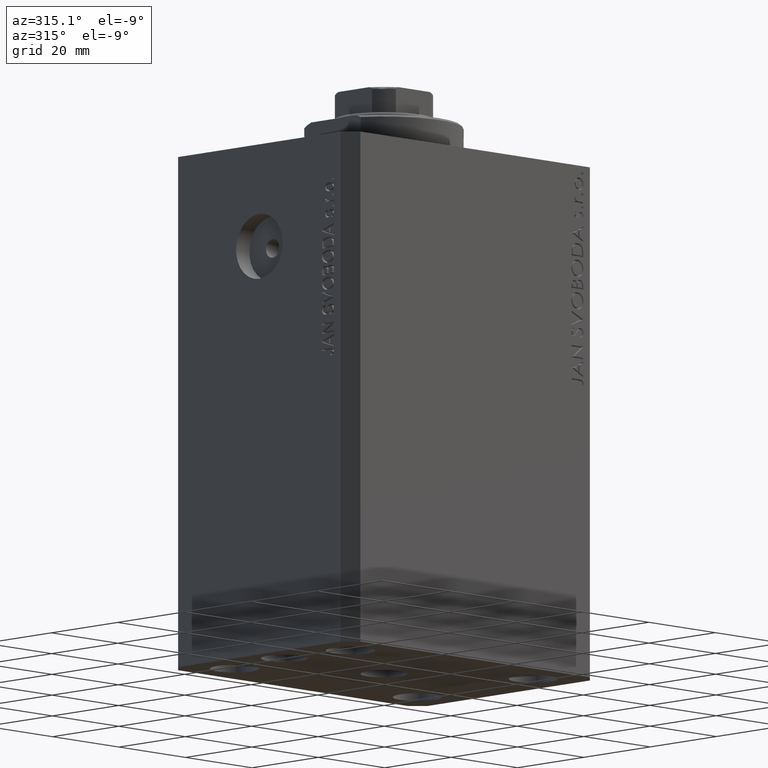
[diagram: clean part render]
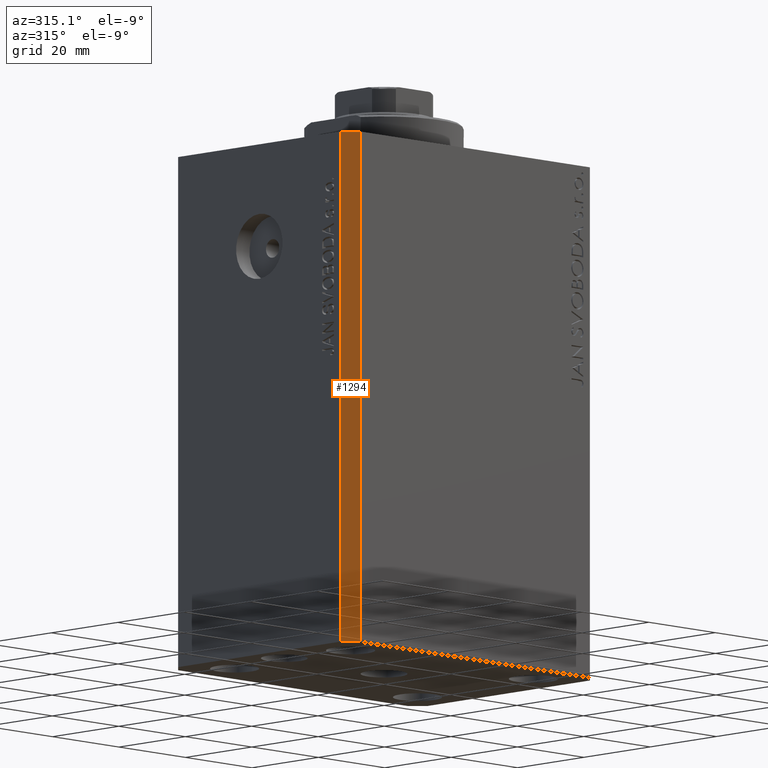
[diagram: same view with one face highlighted and labeled with its STEP entity id]
A machine part, auxiliary view. The second image highlights one B-rep face of the part: STEP entity #1294.
In plain terms, the highlighted planar face has unit normal (-0.7071, -0.7071, 0).
Its self-contained STEP definition (entity closure, byte-faithful):
#1294 = ADVANCED_FACE ( 'NONE', ( #28499 ), #16301, .T. ) ;
#4809 = EDGE_CURVE ( 'NONE', #14878, #35913, #13474, .T. ) ;
#6497 = CARTESIAN_POINT ( 'NONE',  ( -37.49999999999999289, -24.50000000000000000, -110.0000000000000000 ) ) ;
#8600 = VECTOR ( 'NONE', #20469, 1000.000000000000000 ) ;
#9749 = VERTEX_POINT ( 'NONE', #14989 ) ;
#12331 = VERTEX_POINT ( 'NONE', #23382 ) ;
#12534 = LINE ( 'NONE', #19532, #19558 ) ;
#13474 = LINE ( 'NONE', #6497, #8600 ) ;
#14102 = EDGE_CURVE ( 'NONE', #9749, #12331, #12534, .T. ) ;
#14878 = VERTEX_POINT ( 'NONE', #22747 ) ;
#14989 = CARTESIAN_POINT ( 'NONE',  ( -37.49999999999999289, -24.50000000000000000, 0.000000000000000000 ) ) ;
#15583 = ORIENTED_EDGE ( 'NONE', *, *, #4809, .T. ) ;
#16296 = LINE ( 'NONE', #36578, #31969 ) ;
#16301 = PLANE ( 'NONE',  #17931 ) ;
#16850 = ORIENTED_EDGE ( 'NONE', *, *, #14102, .F. ) ;
#17931 = AXIS2_PLACEMENT_3D ( 'NONE', #22850, #22182, #36130 ) ;
#19532 = CARTESIAN_POINT ( 'NONE',  ( -37.49999999999999289, -24.50000000000000000, 0.000000000000000000 ) ) ;
#19558 = VECTOR ( 'NONE', #23361, 1000.000000000000000 ) ;
#20469 = DIRECTION ( 'NONE',  ( 0.7071067811865483499, -0.7071067811865466846, 0.000000000000000000 ) ) ;
#21123 = CARTESIAN_POINT ( 'NONE',  ( -37.49999999999999289, -24.50000000000000000, -110.0000000000000000 ) ) ;
#22182 = DIRECTION ( 'NONE',  ( -0.7071067811865466846, -0.7071067811865483499, 0.000000000000000000 ) ) ;
#22747 = CARTESIAN_POINT ( 'NONE',  ( -37.49999999999999289, -24.50000000000000000, -110.0000000000000000 ) ) ;
#22850 = CARTESIAN_POINT ( 'NONE',  ( -37.49999999999999289, -24.50000000000000000, -110.0000000000000000 ) ) ;
#23361 = DIRECTION ( 'NONE',  ( 0.7071067811865483499, -0.7071067811865466846, 0.000000000000000000 ) ) ;
#23382 = CARTESIAN_POINT ( 'NONE',  ( -34.49999999999998579, -27.49999999999999645, 0.000000000000000000 ) ) ;
#27886 = LINE ( 'NONE', #21123, #37345 ) ;
#28296 = EDGE_CURVE ( 'NONE', #35913, #12331, #16296, .T. ) ;
#28499 = FACE_OUTER_BOUND ( 'NONE', #29274, .T. ) ;
#29086 = ORIENTED_EDGE ( 'NONE', *, *, #44471, .F. ) ;
#29274 = EDGE_LOOP ( 'NONE', ( #16850, #29086, #15583, #34629 ) ) ;
#31925 = CARTESIAN_POINT ( 'NONE',  ( -34.49999999999998579, -27.49999999999999645, -110.0000000000000000 ) ) ;
#31969 = VECTOR ( 'NONE', #43129, 1000.000000000000000 ) ;
#34629 = ORIENTED_EDGE ( 'NONE', *, *, #28296, .T. ) ;
#35913 = VERTEX_POINT ( 'NONE', #31925 ) ;
#36130 = DIRECTION ( 'NONE',  ( 0.7071067811865483499, -0.7071067811865466846, 0.000000000000000000 ) ) ;
#36354 = DIRECTION ( 'NONE',  ( 0.000000000000000000, 0.000000000000000000, 1.000000000000000000 ) ) ;
#36578 = CARTESIAN_POINT ( 'NONE',  ( -34.49999999999998579, -27.49999999999999645, -110.0000000000000000 ) ) ;
#37345 = VECTOR ( 'NONE', #36354, 1000.000000000000000 ) ;
#43129 = DIRECTION ( 'NONE',  ( 0.000000000000000000, 0.000000000000000000, 1.000000000000000000 ) ) ;
#44471 = EDGE_CURVE ( 'NONE', #14878, #9749, #27886, .T. ) ;